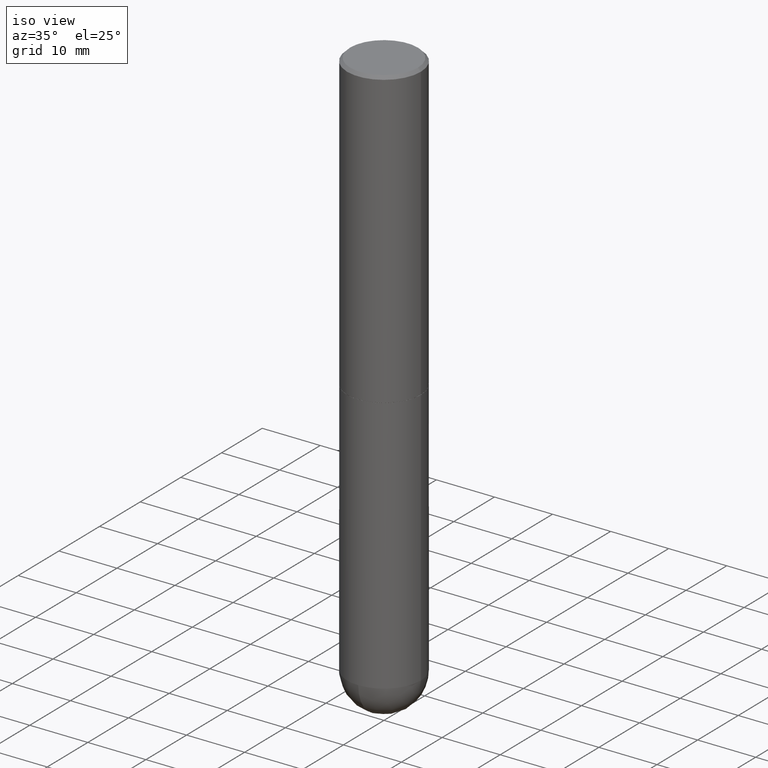
[diagram: clean part render]
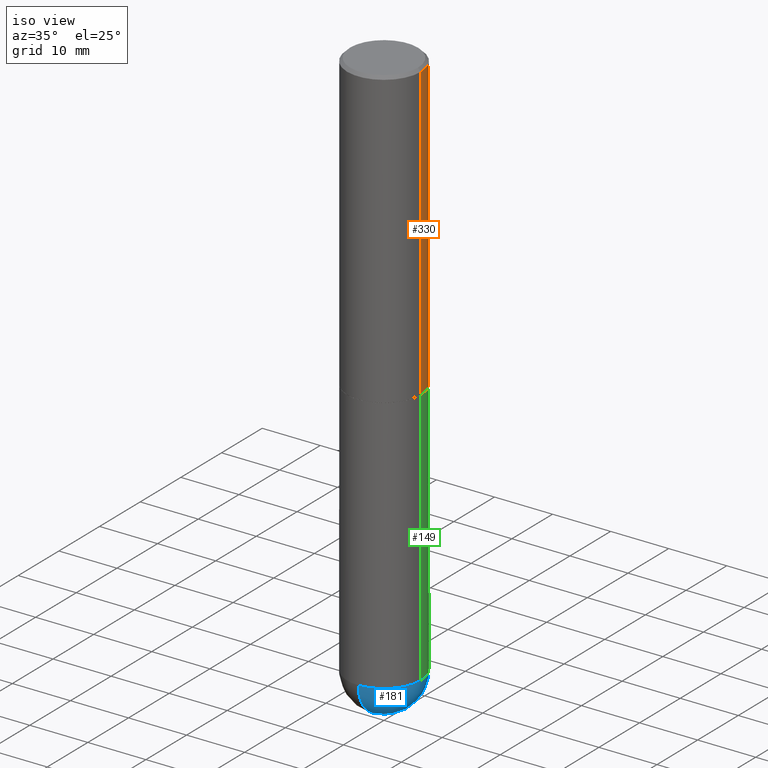
[diagram: same view with three faces highlighted in distinct colors, each labeled with its STEP entity id]
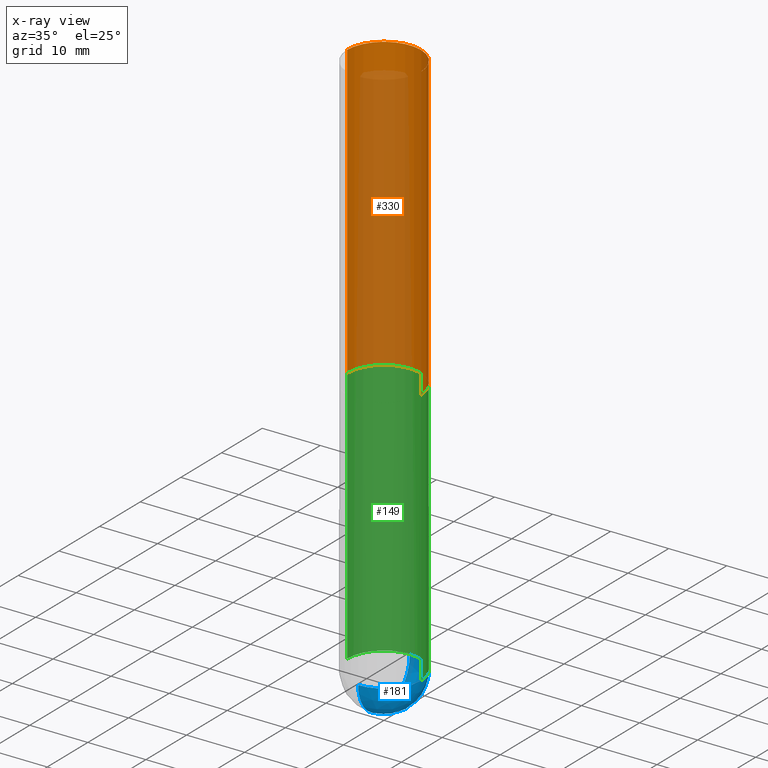
[diagram: x-ray of the same camera — body ghosted, the three highlighted faces saturated]
A machine part, iso view with three faces highlighted in distinct colors.
The next image is the same camera in x-ray (body ghosted, the three faces saturated) — at least one of them is partly hidden behind the body in this view.
Their STEP definitions:

[orange] entity #330 — the highlighted cylindrical surface (partial cylindrical patch) has radius 6.35 mm, axis along (-0, 0, 1).
#9 = ORIENTED_EDGE ( 'NONE', *, *, #116, .T. ) ;
#10 = FACE_OUTER_BOUND ( 'NONE', #189, .T. ) ;
#13 = DIRECTION ( 'NONE',  ( 1.000000000000000000, -6.982962677686267499E-15, 4.876176775795936353E-29 ) ) ;
#21 = EDGE_CURVE ( 'NONE', #152, #410, #231, .T. ) ;
#26 = EDGE_CURVE ( 'NONE', #75, #152, #296, .T. ) ;
#42 = DIRECTION ( 'NONE',  ( 1.000000000000000000, -6.982962677686266711E-15, 0.000000000000000000 ) ) ;
#45 = DIRECTION ( 'NONE',  ( -2.445468806185136597E-29, 3.491481338843145583E-15, 1.000000000000000000 ) ) ;
#63 = ORIENTED_EDGE ( 'NONE', *, *, #356, .T. ) ;
#71 = LINE ( 'NONE', #163, #210 ) ;
#74 = CARTESIAN_POINT ( 'NONE',  ( 4.888492143564087591E-29, -6.979471196347447369E-15, -1.998999999999999888 ) ) ;
#75 = VERTEX_POINT ( 'NONE', #200 ) ;
#111 = DIRECTION ( 'NONE',  ( -2.445468806185136597E-29, 3.491481338843145583E-15, 1.000000000000000000 ) ) ;
#112 = VERTEX_POINT ( 'NONE', #196 ) ;
#116 = EDGE_CURVE ( 'NONE', #112, #410, #71, .T. ) ;
#120 = CARTESIAN_POINT ( 'NONE',  ( 0.2500000000000000000, -1.784954126219746189E-15, -0.02000000000000005593 ) ) ;
#152 = VERTEX_POINT ( 'NONE', #120 ) ;
#163 = CARTESIAN_POINT ( 'NONE',  ( -0.2500000000000001110, 1.776356839400251254E-15, -1.229733772563727146E-29 ) ) ;
#169 = DIRECTION ( 'NONE',  ( 1.000000000000000000, -6.982962677686266711E-15, 0.000000000000000000 ) ) ;
#178 = AXIS2_PLACEMENT_3D ( 'NONE', #336, #45, #169 ) ;
#189 = EDGE_LOOP ( 'NONE', ( #63, #9, #245, #285 ) ) ;
#196 = CARTESIAN_POINT ( 'NONE',  ( -0.2500000000000002220, -1.748293572161902502E-15, -1.998999999999999888 ) ) ;
#200 = CARTESIAN_POINT ( 'NONE',  ( 0.2500000000000002776, -8.725211865769015625E-15, -1.998999999999999888 ) ) ;
#206 = DIRECTION ( 'NONE',  ( -2.445468806185136597E-29, 3.491481338843145583E-15, 1.000000000000000000 ) ) ;
#210 = VECTOR ( 'NONE', #334, 39.37007874015748143 ) ;
#231 = CIRCLE ( 'NONE', #178, 0.2500000000000000000 ) ;
#237 = CARTESIAN_POINT ( 'NONE',  ( 0.000000000000000000, 0.000000000000000000, 0.000000000000000000 ) ) ;
#245 = ORIENTED_EDGE ( 'NONE', *, *, #21, .F. ) ;
#269 = CARTESIAN_POINT ( 'NONE',  ( 0.2500000000000001110, -1.745740669421567664E-15, 1.219044193948984649E-29 ) ) ;
#285 = ORIENTED_EDGE ( 'NONE', *, *, #26, .F. ) ;
#296 = LINE ( 'NONE', #269, #348 ) ;
#297 = CYLINDRICAL_SURFACE ( 'NONE', #398, 0.2500000000000001110 ) ;
#308 = AXIS2_PLACEMENT_3D ( 'NONE', #74, #206, #42 ) ;
#330 = ADVANCED_FACE ( 'NONE', ( #10 ), #297, .T. ) ;
#334 = DIRECTION ( 'NONE',  ( -2.445468806185136877E-29, 3.491481338843145188E-15, 1.000000000000000000 ) ) ;
#336 = CARTESIAN_POINT ( 'NONE',  ( 4.890937612370287172E-31, -6.982962677686310098E-17, -0.02000000000000005593 ) ) ;
#348 = VECTOR ( 'NONE', #390, 39.37007874015748143 ) ;
#356 = EDGE_CURVE ( 'NONE', #75, #112, #377, .T. ) ;
#377 = CIRCLE ( 'NONE', #308, 0.2500000000000002776 ) ;
#390 = DIRECTION ( 'NONE',  ( -2.445468806185136877E-29, 3.491481338843145188E-15, 1.000000000000000000 ) ) ;
#398 = AXIS2_PLACEMENT_3D ( 'NONE', #237, #111, #13 ) ;
#408 = CARTESIAN_POINT ( 'NONE',  ( -0.2500000000000000000, 1.675911042644703577E-15, -0.02000000000000005593 ) ) ;
#410 = VERTEX_POINT ( 'NONE', #408 ) ;

[blue] entity #181 — the highlighted spherical surface has radius 6.35 mm.
#4 = DIRECTION ( 'NONE',  ( 1.000000000000000000, -6.982962677686262766E-15, 0.000000000000000000 ) ) ;
#11 = ORIENTED_EDGE ( 'NONE', *, *, #102, .F. ) ;
#14 = DIRECTION ( 'NONE',  ( 6.982962677686266711E-15, 1.000000000000000000, 0.000000000000000000 ) ) ;
#25 = FACE_OUTER_BOUND ( 'NONE', #381, .T. ) ;
#43 = DIRECTION ( 'NONE',  ( -2.445468806185136597E-29, 3.491481338843145583E-15, 1.000000000000000000 ) ) ;
#46 = CARTESIAN_POINT ( 'NONE',  ( 8.839388245280375991E-29, -1.356723738880184771E-14, -3.750000000000000000 ) ) ;
#48 = VERTEX_POINT ( 'NONE', #167 ) ;
#51 = DIRECTION ( 'NONE',  ( 1.000000000000000000, -6.982962677686265922E-15, 4.883557194083112340E-29 ) ) ;
#55 = AXIS2_PLACEMENT_3D ( 'NONE', #140, #43, #4 ) ;
#60 = DIRECTION ( 'NONE',  ( 6.982962677686265922E-15, 1.000000000000000000, -4.370956789862818783E-15 ) ) ;
#76 = DIRECTION ( 'NONE',  ( 1.000000000000000000, -6.982962677686262766E-15, 0.000000000000000000 ) ) ;
#90 = EDGE_CURVE ( 'NONE', #352, #48, #313, .T. ) ;
#102 = EDGE_CURVE ( 'NONE', #213, #352, #244, .T. ) ;
#140 = CARTESIAN_POINT ( 'NONE',  ( 9.170508023194262238E-29, -1.309305502066179741E-14, -3.750000000000000000 ) ) ;
#156 = CARTESIAN_POINT ( 'NONE',  ( -1.776356839400160732E-15, -0.2500000000000133782, -3.749999999999999112 ) ) ;
#157 = AXIS2_PLACEMENT_3D ( 'NONE', #46, #270, #220 ) ;
#167 = CARTESIAN_POINT ( 'NONE',  ( 1.745740669421657002E-15, 0.2499999999999867606, -3.750000000000001332 ) ) ;
#171 = EDGE_CURVE ( 'NONE', #258, #48, #393, .T. ) ;
#176 = ORIENTED_EDGE ( 'NONE', *, *, #171, .T. ) ;
#181 = ADVANCED_FACE ( 'NONE', ( #25 ), #402, .T. ) ;
#208 = ORIENTED_EDGE ( 'NONE', *, *, #259, .F. ) ;
#209 = CARTESIAN_POINT ( 'NONE',  ( 9.461445025441403338E-29, -1.442479963852329389E-14, -4.000000000000000888 ) ) ;
#213 = VERTEX_POINT ( 'NONE', #156 ) ;
#214 = AXIS2_PLACEMENT_3D ( 'NONE', #221, #346, #60 ) ;
#220 = DIRECTION ( 'NONE',  ( -7.105427357601001859E-15, -1.000000000000000000, 0.000000000000000000 ) ) ;
#221 = CARTESIAN_POINT ( 'NONE',  ( 8.839388245280375991E-29, -1.356723738880184771E-14, -3.750000000000000000 ) ) ;
#234 = CARTESIAN_POINT ( 'NONE',  ( 9.170508023194262238E-29, -1.309305502066179741E-14, -3.750000000000000000 ) ) ;
#244 = CIRCLE ( 'NONE', #55, 0.2500000000000000000 ) ;
#258 = VERTEX_POINT ( 'NONE', #209 ) ;
#259 = EDGE_CURVE ( 'NONE', #258, #213, #307, .T. ) ;
#270 = DIRECTION ( 'NONE',  ( -1.000000000000000000, 7.105427357601001070E-15, -4.926315508542082329E-29 ) ) ;
#278 = AXIS2_PLACEMENT_3D ( 'NONE', #338, #51, #14 ) ;
#298 = ORIENTED_EDGE ( 'NONE', *, *, #90, .F. ) ;
#307 = CIRCLE ( 'NONE', #157, 0.2500000000000001110 ) ;
#313 = CIRCLE ( 'NONE', #386, 0.2500000000000000000 ) ;
#338 = CARTESIAN_POINT ( 'NONE',  ( 8.839388245280375991E-29, -1.356723738880184771E-14, -3.750000000000000000 ) ) ;
#346 = DIRECTION ( 'NONE',  ( -1.000000000000000000, 6.982962677686265922E-15, -4.883557194083113462E-29 ) ) ;
#352 = VERTEX_POINT ( 'NONE', #354 ) ;
#354 = CARTESIAN_POINT ( 'NONE',  ( 0.2500000000000000000, -1.178374951859561294E-14, -3.750000000000000000 ) ) ;
#360 = DIRECTION ( 'NONE',  ( -2.445468806185136597E-29, 3.491481338843145583E-15, 1.000000000000000000 ) ) ;
#381 = EDGE_LOOP ( 'NONE', ( #208, #176, #298, #11 ) ) ;
#386 = AXIS2_PLACEMENT_3D ( 'NONE', #234, #360, #76 ) ;
#393 = CIRCLE ( 'NONE', #278, 0.2500000000000001110 ) ;
#402 = SPHERICAL_SURFACE ( 'NONE', #214, 0.2500000000000001110 ) ;

[green] entity #149 — the highlighted cylindrical surface (partial cylindrical patch) has radius 6.35 mm, axis along (-0, 0, 1).
#3 = VERTEX_POINT ( 'NONE', #73 ) ;
#12 = VECTOR ( 'NONE', #84, 39.37007874015748143 ) ;
#22 = AXIS2_PLACEMENT_3D ( 'NONE', #327, #392, #47 ) ;
#27 = CARTESIAN_POINT ( 'NONE',  ( 4.890937612370273194E-29, -6.982962677686291165E-15, -2.000000000000000000 ) ) ;
#47 = DIRECTION ( 'NONE',  ( 1.000000000000000000, -6.982962677686262766E-15, 0.000000000000000000 ) ) ;
#48 = VERTEX_POINT ( 'NONE', #167 ) ;
#67 = DIRECTION ( 'NONE',  ( -2.445468806185136597E-29, 3.491481338843145583E-15, 1.000000000000000000 ) ) ;
#73 = CARTESIAN_POINT ( 'NONE',  ( -0.2500000000000000000, -8.261652009773794219E-15, -2.000000000000000000 ) ) ;
#76 = DIRECTION ( 'NONE',  ( 1.000000000000000000, -6.982962677686262766E-15, 0.000000000000000000 ) ) ;
#78 = AXIS2_PLACEMENT_3D ( 'NONE', #27, #411, #344 ) ;
#79 = VERTEX_POINT ( 'NONE', #164 ) ;
#80 = CARTESIAN_POINT ( 'NONE',  ( 0.2500000000000000000, -8.728703347107857054E-15, -2.000000000000000000 ) ) ;
#83 = ORIENTED_EDGE ( 'NONE', *, *, #90, .T. ) ;
#84 = DIRECTION ( 'NONE',  ( -2.445468806185136877E-29, 3.491481338843145188E-15, 1.000000000000000000 ) ) ;
#85 = CIRCLE ( 'NONE', #22, 0.2500000000000000000 ) ;
#90 = EDGE_CURVE ( 'NONE', #352, #48, #313, .T. ) ;
#96 = CYLINDRICAL_SURFACE ( 'NONE', #359, 0.2500000000000000000 ) ;
#139 = VECTOR ( 'NONE', #314, 39.37007874015748143 ) ;
#149 = ADVANCED_FACE ( 'NONE', ( #261 ), #96, .T. ) ;
#150 = CIRCLE ( 'NONE', #78, 0.2500000000000000000 ) ;
#164 = CARTESIAN_POINT ( 'NONE',  ( -0.2500000000000000000, -8.261652009773795797E-15, -3.750000000000000000 ) ) ;
#167 = CARTESIAN_POINT ( 'NONE',  ( 1.745740669421657002E-15, 0.2499999999999867606, -3.750000000000001332 ) ) ;
#172 = LINE ( 'NONE', #395, #139 ) ;
#204 = EDGE_CURVE ( 'NONE', #79, #3, #282, .T. ) ;
#205 = EDGE_CURVE ( 'NONE', #375, #3, #150, .T. ) ;
#227 = CARTESIAN_POINT ( 'NONE',  ( 0.000000000000000000, 0.000000000000000000, 0.000000000000000000 ) ) ;
#234 = CARTESIAN_POINT ( 'NONE',  ( 9.170508023194262238E-29, -1.309305502066179741E-14, -3.750000000000000000 ) ) ;
#261 = FACE_OUTER_BOUND ( 'NONE', #283, .T. ) ;
#282 = LINE ( 'NONE', #369, #12 ) ;
#283 = EDGE_LOOP ( 'NONE', ( #292, #405, #335, #329, #83 ) ) ;
#292 = ORIENTED_EDGE ( 'NONE', *, *, #299, .T. ) ;
#299 = EDGE_CURVE ( 'NONE', #48, #79, #85, .T. ) ;
#313 = CIRCLE ( 'NONE', #386, 0.2500000000000000000 ) ;
#314 = DIRECTION ( 'NONE',  ( -2.445468806185136877E-29, 3.491481338843145188E-15, 1.000000000000000000 ) ) ;
#322 = DIRECTION ( 'NONE',  ( 1.000000000000000000, -6.982962677686266711E-15, 4.876176775795935793E-29 ) ) ;
#327 = CARTESIAN_POINT ( 'NONE',  ( 9.170508023194262238E-29, -1.309305502066179741E-14, -3.750000000000000000 ) ) ;
#329 = ORIENTED_EDGE ( 'NONE', *, *, #362, .F. ) ;
#335 = ORIENTED_EDGE ( 'NONE', *, *, #205, .F. ) ;
#344 = DIRECTION ( 'NONE',  ( 1.000000000000000000, -6.982962677686266711E-15, 0.000000000000000000 ) ) ;
#352 = VERTEX_POINT ( 'NONE', #354 ) ;
#354 = CARTESIAN_POINT ( 'NONE',  ( 0.2500000000000000000, -1.178374951859561294E-14, -3.750000000000000000 ) ) ;
#359 = AXIS2_PLACEMENT_3D ( 'NONE', #227, #67, #322 ) ;
#360 = DIRECTION ( 'NONE',  ( -2.445468806185136597E-29, 3.491481338843145583E-15, 1.000000000000000000 ) ) ;
#362 = EDGE_CURVE ( 'NONE', #352, #375, #172, .T. ) ;
#369 = CARTESIAN_POINT ( 'NONE',  ( -0.2500000000000000000, 1.776356839400250465E-15, -1.229733772563726445E-29 ) ) ;
#375 = VERTEX_POINT ( 'NONE', #80 ) ;
#386 = AXIS2_PLACEMENT_3D ( 'NONE', #234, #360, #76 ) ;
#392 = DIRECTION ( 'NONE',  ( -2.445468806185136597E-29, 3.491481338843145583E-15, 1.000000000000000000 ) ) ;
#395 = CARTESIAN_POINT ( 'NONE',  ( 0.2500000000000000000, -1.745740669421566678E-15, 1.219044193948983948E-29 ) ) ;
#405 = ORIENTED_EDGE ( 'NONE', *, *, #204, .T. ) ;
#411 = DIRECTION ( 'NONE',  ( -2.445468806185136597E-29, 3.491481338843145583E-15, 1.000000000000000000 ) ) ;